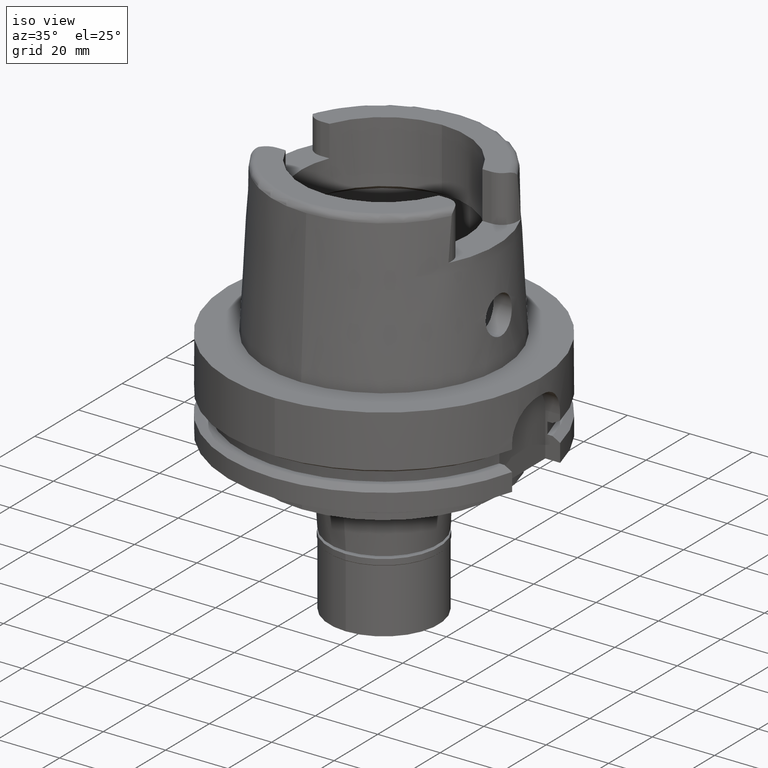
[diagram: clean part render]
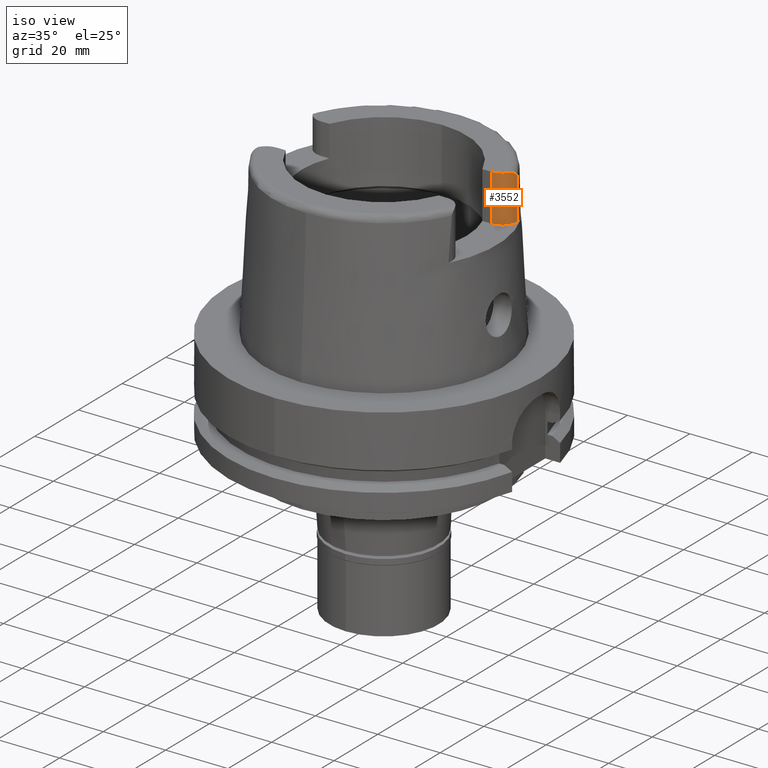
[diagram: same view with one face highlighted and labeled with its STEP entity id]
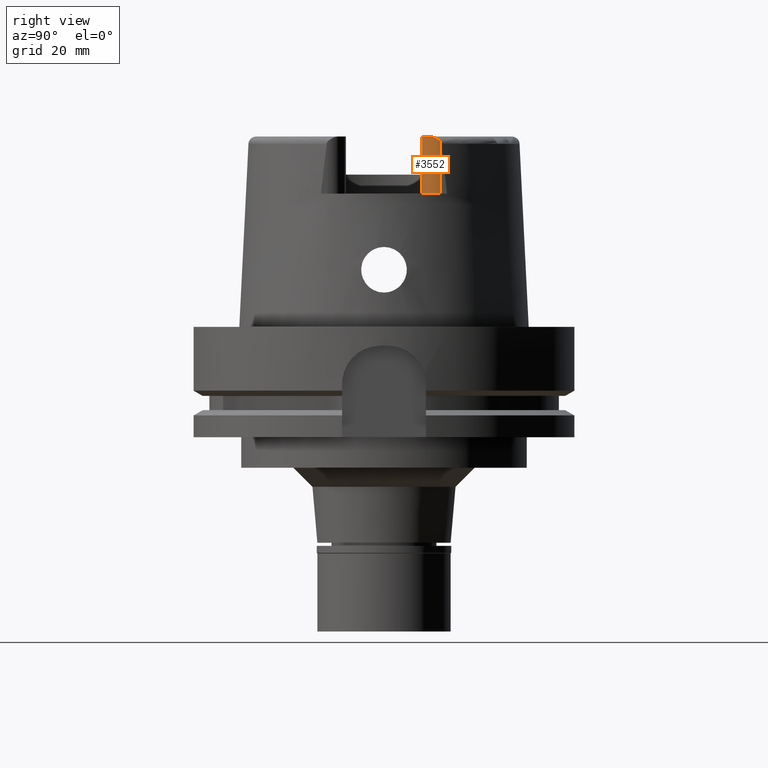
[diagram: same view with one face highlighted and labeled with its STEP entity id]
A machine part, iso view. The second image highlights one B-rep face of the part: STEP entity #3552.
A second angle (right view) of the same face is appended — the face is thin or edge-on in the first view.
In plain terms, the highlighted cylindrical surface (edge-blend (fillet) strip) has radius 4.88 mm, axis along (0, 0, 1).
Its self-contained STEP definition (entity closure, byte-faithful):
#94 = DIRECTION ( 'NONE',  ( 0.0000000000000000000, 0.0000000000000000000, -1.000000000000000000 ) ) ;
#161 = EDGE_CURVE ( 'NONE', #197, #1887, #3939, .T. ) ;
#197 = VERTEX_POINT ( 'NONE', #3803 ) ;
#264 = CARTESIAN_POINT ( 'NONE',  ( 32.25000000000000000, 14.89000000000000057, 35.00000000000000000 ) ) ;
#279 = LINE ( 'NONE', #1247, #5573 ) ;
#449 = CARTESIAN_POINT ( 'NONE',  ( 32.12393668874677388, 13.78793238936746413, 49.46597005151037507 ) ) ;
#660 = DIRECTION ( 'NONE',  ( 0.0000000000000000000, 0.0000000000000000000, 1.000000000000000000 ) ) ;
#752 = ORIENTED_EDGE ( 'NONE', *, *, #161, .T. ) ;
#807 = CARTESIAN_POINT ( 'NONE',  ( 32.03625970496624120, 13.45279568295141637, 49.64227279326623687 ) ) ;
#833 = CARTESIAN_POINT ( 'NONE',  ( 32.24918097398481365, 14.77413597459599792, 48.70184011591847906 ) ) ;
#957 = EDGE_CURVE ( 'NONE', #197, #3053, #279, .T. ) ;
#1066 = AXIS2_PLACEMENT_3D ( 'NONE', #4023, #94, #3609 ) ;
#1147 = EDGE_LOOP ( 'NONE', ( #1868, #2110, #1814, #752, #2119 ) ) ;
#1194 = CARTESIAN_POINT ( 'NONE',  ( 32.22073641654757381, 14.34668569057839882, 49.10054858019201163 ) ) ;
#1247 = CARTESIAN_POINT ( 'NONE',  ( 32.25000000000000000, 14.89000000000000057, 48.54599893821999501 ) ) ;
#1259 = CARTESIAN_POINT ( 'NONE',  ( 32.24488804105775586, 14.66367181025879063, 48.81924936174445406 ) ) ;
#1264 = CARTESIAN_POINT ( 'NONE',  ( 27.36999999999999744, 14.89000000000000057, 35.00000000000000000 ) ) ;
#1315 = LINE ( 'NONE', #2188, #1669 ) ;
#1601 = CARTESIAN_POINT ( 'NONE',  ( 31.87193165413802731, 13.00495602896402048, 49.82279484856071861 ) ) ;
#1612 = CIRCLE ( 'NONE', #4398, 4.879999999999999005 ) ;
#1658 = CARTESIAN_POINT ( 'NONE',  ( 31.93120895491001576, 13.15329269566870884, 49.76841864531822068 ) ) ;
#1669 = VECTOR ( 'NONE', #4801, 1000.000000000000000 ) ;
#1690 = CARTESIAN_POINT ( 'NONE',  ( 32.16947422453827699, 14.00494496056637850, 49.33722347378393636 ) ) ;
#1722 = CARTESIAN_POINT ( 'NONE',  ( 31.52212966032769259, 12.30947384201888184, 50.00000000000000711 ) ) ;
#1814 = ORIENTED_EDGE ( 'NONE', *, *, #957, .F. ) ;
#1827 = EDGE_CURVE ( 'NONE', #1887, #3762, #2399, .T. ) ;
#1868 = ORIENTED_EDGE ( 'NONE', *, *, #3640, .F. ) ;
#1887 = VERTEX_POINT ( 'NONE', #3159 ) ;
#2049 = CARTESIAN_POINT ( 'NONE',  ( 32.23895654661086496, 14.56120618147399526, 48.91732522773371272 ) ) ;
#2110 = ORIENTED_EDGE ( 'NONE', *, *, #2860, .T. ) ;
#2119 = ORIENTED_EDGE ( 'NONE', *, *, #1827, .T. ) ;
#2135 = CARTESIAN_POINT ( 'NONE',  ( 31.95891501907960475, 13.22791007510142869, 49.73874576575883566 ) ) ;
#2188 = CARTESIAN_POINT ( 'NONE',  ( 27.36999999999999744, 10.00999999999999979, 35.00000000000000000 ) ) ;
#2399 = CIRCLE ( 'NONE', #1066, 4.880000000000001670 ) ;
#2538 = CARTESIAN_POINT ( 'NONE',  ( 32.14174489560335957, 13.86693776747219609, 49.42081567819167276 ) ) ;
#2569 = CARTESIAN_POINT ( 'NONE',  ( 32.23398358585977519, 14.49478334332422946, 48.97628302436960013 ) ) ;
#2636 = AXIS2_PLACEMENT_3D ( 'NONE', #5418, #660, #3317 ) ;
#2786 = FACE_OUTER_BOUND ( 'NONE', #1147, .T. ) ;
#2860 = EDGE_CURVE ( 'NONE', #2986, #3053, #1612, .T. ) ;
#2899 = CARTESIAN_POINT ( 'NONE',  ( 32.12944477594015069, 13.81178428783969814, 49.45250841021358923 ) ) ;
#2939 = CARTESIAN_POINT ( 'NONE',  ( 32.18001438334281517, 14.06441724222722023, 49.29906787835760440 ) ) ;
#2972 = CARTESIAN_POINT ( 'NONE',  ( 32.20763848962646847, 14.23780763936535543, 49.18202065173393578 ) ) ;
#2979 = DIRECTION ( 'NONE',  ( 0.0000000000000000000, 0.0000000000000000000, 1.000000000000000000 ) ) ;
#2986 = VERTEX_POINT ( 'NONE', #3767 ) ;
#3053 = VERTEX_POINT ( 'NONE', #264 ) ;
#3159 = CARTESIAN_POINT ( 'NONE',  ( 31.35385269249000473, 12.07161079256999869, 50.00000000000000000 ) ) ;
#3317 = DIRECTION ( 'NONE',  ( 1.000000000000000000, 0.0000000000000000000, 0.0000000000000000000 ) ) ;
#3411 = CARTESIAN_POINT ( 'NONE',  ( 32.15137040248950484, 13.91333942031748450, 49.39316664675115476 ) ) ;
#3552 = ADVANCED_FACE ( 'NONE', ( #2786 ), #4530, .T. ) ;
#3609 = DIRECTION ( 'NONE',  ( 0.8163632566568778115, -0.5775387720149849358, 0.0000000000000000000 ) ) ;
#3640 = EDGE_CURVE ( 'NONE', #2986, #3762, #1315, .T. ) ;
#3762 = VERTEX_POINT ( 'NONE', #4382 ) ;
#3767 = CARTESIAN_POINT ( 'NONE',  ( 27.36999999999999744, 10.00999999999999979, 35.00000000000000000 ) ) ;
#3803 = CARTESIAN_POINT ( 'NONE',  ( 32.25000000000000000, 14.89000000000000057, 48.54599893821999501 ) ) ;
#3859 = CARTESIAN_POINT ( 'NONE',  ( 32.25000000000000000, 14.89000000000000057, 48.54599893821999501 ) ) ;
#3939 = B_SPLINE_CURVE_WITH_KNOTS ( 'NONE', 3,
 ( #3859, #5136, #833, #1259, #5559, #2049, #5594, #2569, #4740, #4710, #1194, #2972, #2939, #1690, #3411, #2538, #2899, #449, #4650, #4683, #4271, #807, #2135, #1658, #1601, #5103, #5051, #1722, #5164 ),
 .UNSPECIFIED., .F., .F.,
 ( 4, 2, 2, 1, 2, 2, 2, 2, 1, 1, 2, 2, 2, 2, 2, 4 ),
 ( 0.0000000000000000000, 0.1250000000000191236, 0.1875000000000324185, 0.2187500000000383582, 0.2343750000000394129, 0.2500000000000404676, 0.3750000000000380251, 0.4375000000000379696, 0.4687500000000373035, 0.4843750000000378031, 0.4921875000000393574, 0.5000000000000409672, 0.6250000000000320854, 0.6875000000000268674, 0.7500000000000216493, 1.000000000000000000 ),
 .UNSPECIFIED. ) ;
#4023 = CARTESIAN_POINT ( 'NONE',  ( 27.36999999999999744, 14.89000000000000057, 50.00000000000000000 ) ) ;
#4271 = CARTESIAN_POINT ( 'NONE',  ( 32.08011974769803487, 13.60409443977187927, 49.56801836651865045 ) ) ;
#4382 = CARTESIAN_POINT ( 'NONE',  ( 27.36999999999999744, 10.00999999999999979, 50.00000000000000000 ) ) ;
#4398 = AXIS2_PLACEMENT_3D ( 'NONE', #1264, #2979, #4717 ) ;
#4530 = CYLINDRICAL_SURFACE ( 'NONE', #2636, 4.880000000000002558 ) ;
#4650 = CARTESIAN_POINT ( 'NONE',  ( 32.12021124388610360, 13.77198381162174456, 49.47491759945464196 ) ) ;
#4683 = CARTESIAN_POINT ( 'NONE',  ( 32.11867316242746995, 13.76545634353371206, 49.47856273186228293 ) ) ;
#4710 = CARTESIAN_POINT ( 'NONE',  ( 32.23113507641469511, 14.46113078501276128, 49.00502183919039112 ) ) ;
#4717 = DIRECTION ( 'NONE',  ( 0.0000000000000000000, -1.000000000000000000, 0.0000000000000000000 ) ) ;
#4740 = CARTESIAN_POINT ( 'NONE',  ( 32.23206479271068758, 14.47183916884709909, 48.99595396917015933 ) ) ;
#4801 = DIRECTION ( 'NONE',  ( 0.0000000000000000000, 0.0000000000000000000, 1.000000000000000000 ) ) ;
#5051 = CARTESIAN_POINT ( 'NONE',  ( 31.67587334081715156, 12.57206772026888331, 49.95657223932961699 ) ) ;
#5103 = CARTESIAN_POINT ( 'NONE',  ( 31.83959934829132976, 12.92957495149903302, 49.84800283765364526 ) ) ;
#5136 = CARTESIAN_POINT ( 'NONE',  ( 32.25000000000001421, 14.83732872399432168, 48.62380211316876455 ) ) ;
#5164 = CARTESIAN_POINT ( 'NONE',  ( 31.35385269249000473, 12.07161079256999869, 50.00000000000000000 ) ) ;
#5418 = CARTESIAN_POINT ( 'NONE',  ( 27.36999999999999744, 14.89000000000000057, 50.00000000000000000 ) ) ;
#5517 = DIRECTION ( 'NONE',  ( 2.098162679624000168E-14, 0.0000000000000000000, -1.000000000000000000 ) ) ;
#5559 = CARTESIAN_POINT ( 'NONE',  ( 32.24293999554074475, 14.62423937198621005, 48.85844448397000406 ) ) ;
#5573 = VECTOR ( 'NONE', #5517, 1000.000000000000000 ) ;
#5594 = CARTESIAN_POINT ( 'NONE',  ( 32.23669889656311227, 14.52871869259676707, 48.94678761472189876 ) ) ;